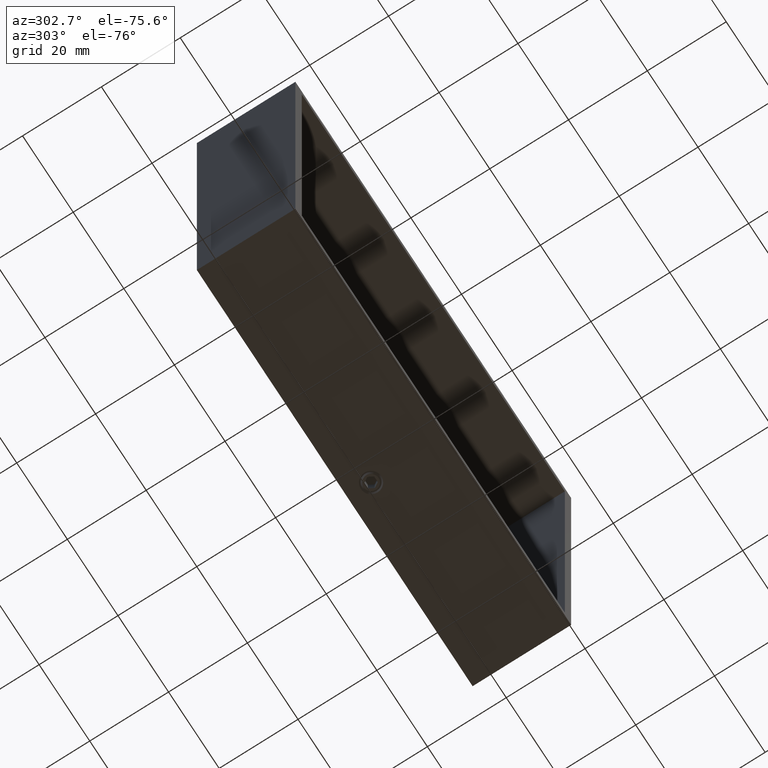
[diagram: clean part render]
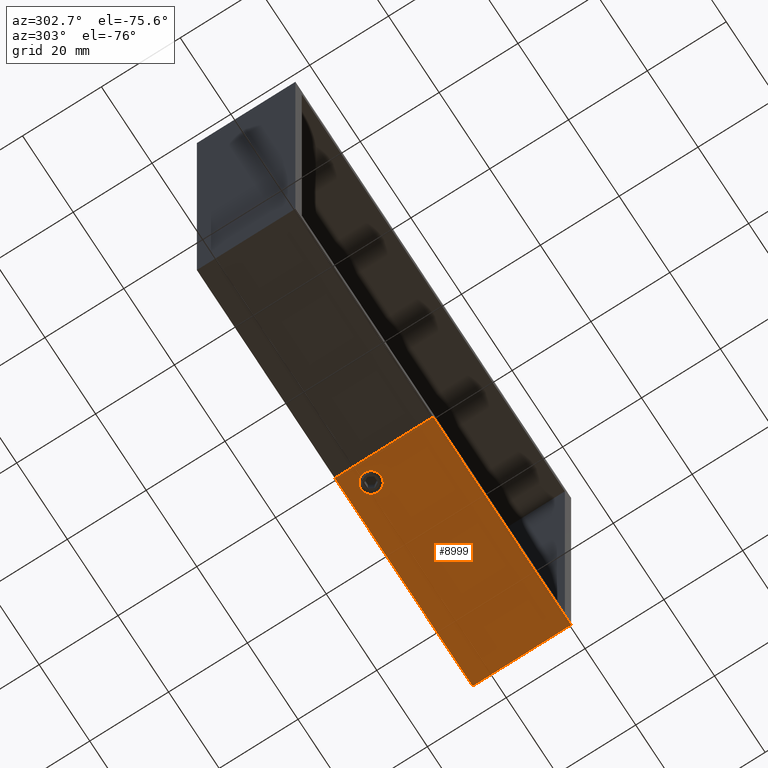
[diagram: same view with one face highlighted and labeled with its STEP entity id]
A machine part, auxiliary view. The second image highlights one B-rep face of the part: STEP entity #8999.
In plain terms, the highlighted planar face has unit normal (-0, 0, 1).
Its self-contained STEP definition (entity closure, byte-faithful):
#468 = CARTESIAN_POINT ( 'NONE',  ( -27.24999999999999300, 0.0000000000000000000, 54.49999999999999300 ) ) ;
#542 = ORIENTED_EDGE ( 'NONE', *, *, #9289, .T. ) ;
#1561 = VECTOR ( 'NONE', #4387, 1000.000000000000000 ) ;
#1861 = VECTOR ( 'NONE', #15420, 1000.000000000000000 ) ;
#1992 = ORIENTED_EDGE ( 'NONE', *, *, #2485, .T. ) ;
#2037 = DIRECTION ( 'NONE',  ( -0.0000000000000000000, -1.000000000000000000, -0.0000000000000000000 ) ) ;
#2045 = ORIENTED_EDGE ( 'NONE', *, *, #6383, .T. ) ;
#2485 = EDGE_CURVE ( 'NONE', #12612, #3929, #6282, .T. ) ;
#2612 = CARTESIAN_POINT ( 'NONE',  ( 27.25000000000000700, 25.00000000000000000, 54.49999999999999300 ) ) ;
#3053 = CARTESIAN_POINT ( 'NONE',  ( -27.24999999999999300, 25.00000000000000000, 54.49999999999999300 ) ) ;
#3085 = CARTESIAN_POINT ( 'NONE',  ( -27.24999999999999300, 25.00000000000000000, 54.49999999999999300 ) ) ;
#3929 = VERTEX_POINT ( 'NONE', #468 ) ;
#4387 = DIRECTION ( 'NONE',  ( 1.000000000000000000, 0.0000000000000000000, 0.0000000000000000000 ) ) ;
#4741 = DIRECTION ( 'NONE',  ( -1.000000000000000000, 0.0000000000000000000, -0.0000000000000000000 ) ) ;
#4785 = EDGE_LOOP ( 'NONE', ( #2045, #542 ) ) ;
#4818 = AXIS2_PLACEMENT_3D ( 'NONE', #12290, #6304, #7512 ) ;
#5242 = FACE_BOUND ( 'NONE', #4785, .T. ) ;
#5280 = CIRCLE ( 'NONE', #10936, 2.599999999999977400 ) ;
#5456 = LINE ( 'NONE', #14364, #1861 ) ;
#5645 = CARTESIAN_POINT ( 'NONE',  ( 19.65000000000003100, 19.00000000000000400, 54.49999999999999300 ) ) ;
#5723 = LINE ( 'NONE', #3085, #1561 ) ;
#6097 = VERTEX_POINT ( 'NONE', #11626 ) ;
#6190 = LINE ( 'NONE', #6369, #8277 ) ;
#6210 = CARTESIAN_POINT ( 'NONE',  ( 22.25000000000001100, 19.00000000000000400, 54.49999999999999300 ) ) ;
#6282 = LINE ( 'NONE', #3053, #11902 ) ;
#6304 = DIRECTION ( 'NONE',  ( 0.0000000000000000000, 0.0000000000000000000, -1.000000000000000000 ) ) ;
#6369 = CARTESIAN_POINT ( 'NONE',  ( 27.25000000000000700, 25.00000000000000000, 54.49999999999999300 ) ) ;
#6383 = EDGE_CURVE ( 'NONE', #14106, #7092, #5280, .T. ) ;
#6605 = ORIENTED_EDGE ( 'NONE', *, *, #12357, .F. ) ;
#6669 = EDGE_CURVE ( 'NONE', #8809, #6097, #6190, .T. ) ;
#7092 = VERTEX_POINT ( 'NONE', #5645 ) ;
#7512 = DIRECTION ( 'NONE',  ( -1.000000000000000000, 0.0000000000000000000, 0.0000000000000000000 ) ) ;
#7968 = ORIENTED_EDGE ( 'NONE', *, *, #15393, .T. ) ;
#8277 = VECTOR ( 'NONE', #11120, 1000.000000000000000 ) ;
#8437 = FACE_OUTER_BOUND ( 'NONE', #10430, .T. ) ;
#8809 = VERTEX_POINT ( 'NONE', #2612 ) ;
#8999 = ADVANCED_FACE ( 'NONE', ( #5242, #8437 ), #10735, .F. ) ;
#9289 = EDGE_CURVE ( 'NONE', #7092, #14106, #13685, .T. ) ;
#10170 = CARTESIAN_POINT ( 'NONE',  ( 24.84999999999998700, 19.00000000000000400, 54.49999999999999300 ) ) ;
#10430 = EDGE_LOOP ( 'NONE', ( #7968, #12889, #6605, #1992 ) ) ;
#10735 = PLANE ( 'NONE',  #11756 ) ;
#10936 = AXIS2_PLACEMENT_3D ( 'NONE', #6210, #13402, #12365 ) ;
#11120 = DIRECTION ( 'NONE',  ( -0.0000000000000000000, -1.000000000000000000, -0.0000000000000000000 ) ) ;
#11343 = CARTESIAN_POINT ( 'NONE',  ( -27.24999999999999300, 25.00000000000000000, 54.49999999999999300 ) ) ;
#11626 = CARTESIAN_POINT ( 'NONE',  ( 27.25000000000000700, 0.0000000000000000000, 54.49999999999999300 ) ) ;
#11756 = AXIS2_PLACEMENT_3D ( 'NONE', #11923, #14405, #4741 ) ;
#11902 = VECTOR ( 'NONE', #2037, 1000.000000000000000 ) ;
#11923 = CARTESIAN_POINT ( 'NONE',  ( -27.24999999999999300, 25.00000000000000000, 54.49999999999999300 ) ) ;
#12290 = CARTESIAN_POINT ( 'NONE',  ( 22.25000000000001100, 19.00000000000000400, 54.49999999999999300 ) ) ;
#12357 = EDGE_CURVE ( 'NONE', #12612, #8809, #5723, .T. ) ;
#12365 = DIRECTION ( 'NONE',  ( -1.000000000000000000, 0.0000000000000000000, 0.0000000000000000000 ) ) ;
#12612 = VERTEX_POINT ( 'NONE', #11343 ) ;
#12889 = ORIENTED_EDGE ( 'NONE', *, *, #6669, .F. ) ;
#13402 = DIRECTION ( 'NONE',  ( 0.0000000000000000000, 0.0000000000000000000, -1.000000000000000000 ) ) ;
#13685 = CIRCLE ( 'NONE', #4818, 2.599999999999977400 ) ;
#14106 = VERTEX_POINT ( 'NONE', #10170 ) ;
#14364 = CARTESIAN_POINT ( 'NONE',  ( -27.24999999999999300, 0.0000000000000000000, 54.49999999999999300 ) ) ;
#14405 = DIRECTION ( 'NONE',  ( 0.0000000000000000000, 0.0000000000000000000, -1.000000000000000000 ) ) ;
#15393 = EDGE_CURVE ( 'NONE', #3929, #6097, #5456, .T. ) ;
#15420 = DIRECTION ( 'NONE',  ( 1.000000000000000000, 0.0000000000000000000, 0.0000000000000000000 ) ) ;